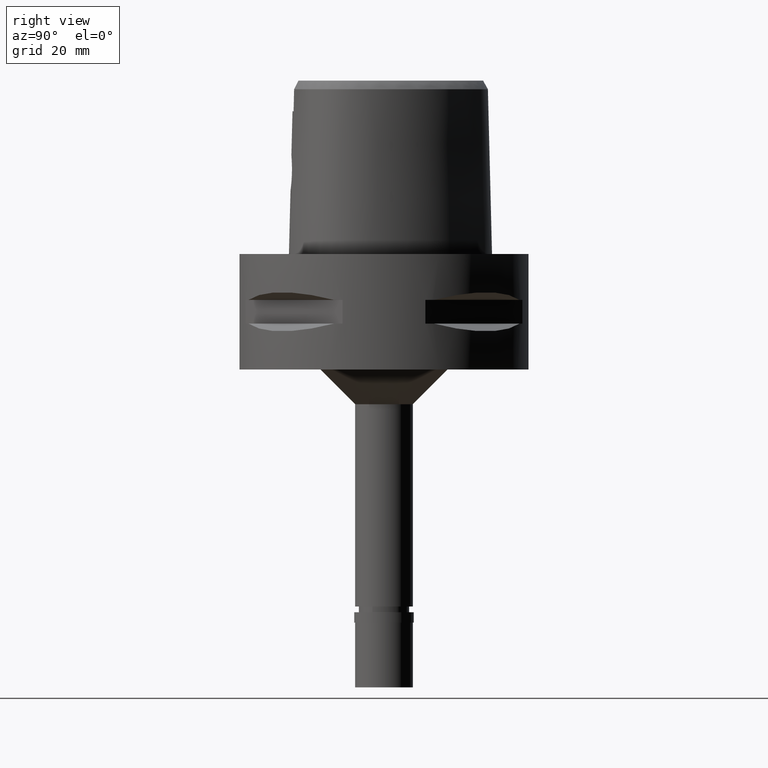
[diagram: clean part render]
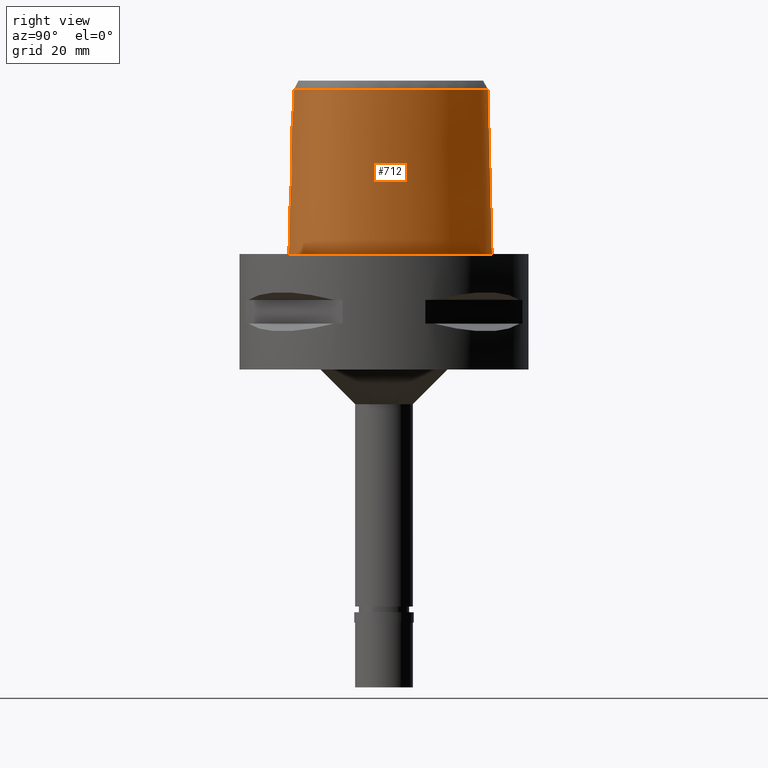
[diagram: same view with one face highlighted and labeled with its STEP entity id]
A machine part, right view. The second image highlights one B-rep face of the part: STEP entity #712.
In plain terms, the highlighted face is a freeform B-spline surface patch.
Its self-contained STEP definition (entity closure, byte-faithful):
#2 = CARTESIAN_POINT ( 'NONE',  ( 17.71143736562866167, -3.269218749935230761, -3.991948326802566283E-07 ) ) ;
#14 = CARTESIAN_POINT ( 'NONE',  ( 2.030224829794000080E-07, -15.83752876601000281, 24.70000006102999990 ) ) ;
#34 = CARTESIAN_POINT ( 'NONE',  ( 15.07117004567259677, -9.793013887526365480, 28.52071728562183495 ) ) ;
#35 = CARTESIAN_POINT ( 'NONE',  ( 0.6770584128777843436, -16.17132556088388995, 11.02443681068324643 ) ) ;
#53 = CARTESIAN_POINT ( 'NONE',  ( 16.29641058196000003, 3.623925460738000037, 9.316772533534999567 ) ) ;
#74 = CARTESIAN_POINT ( 'NONE',  ( 3.048883421515427461, -15.94046337244652278, 13.90502257973829003 ) ) ;
#102 = CARTESIAN_POINT ( 'NONE',  ( 1.979050802169605827, -16.09313883417849667, 11.67852903117091579 ) ) ;
#126 = EDGE_LOOP ( 'NONE', ( #3692, #1428, #3619, #3373, #3211, #3389, #194, #4748 ) ) ;
#129 = CARTESIAN_POINT ( 'NONE',  ( 2.164021906619612245, -15.96736812113673842, 16.14931344321803053 ) ) ;
#131 = CARTESIAN_POINT ( 'NONE',  ( 3.168920890822999770, -15.55911073834000113, 28.52071374672999582 ) ) ;
#150 = CARTESIAN_POINT ( 'NONE',  ( 2.806282367902103836, -15.99380854387472084, 12.80500890572250228 ) ) ;
#176 = CARTESIAN_POINT ( 'NONE',  ( 2.775961287969037183, -15.99857004330619148, 12.73620107529055190 ) ) ;
#193 = CARTESIAN_POINT ( 'NONE',  ( 13.75951381385537253, 7.944084035686613809, 28.52071728562183495 ) ) ;
#194 = ORIENTED_EDGE ( 'NONE', *, *, #1743, .T. ) ;
#209 = CARTESIAN_POINT ( 'NONE',  ( -0.7074880726816999976, -15.72098118148999824, 29.09114689043000013 ) ) ;
#232 = CARTESIAN_POINT ( 'NONE',  ( 6.797662629446558481E-08, -15.96503292052490686, 19.60000012629548394 ) ) ;
#233 = CARTESIAN_POINT ( 'NONE',  ( 17.72574105881000150, -3.269125760302999506, -0.5704146449103000283 ) ) ;
#253 = CARTESIAN_POINT ( 'NONE',  ( 5.009809425318999310, -15.92506883569000031, 9.316772533534999567 ) ) ;
#305 = CARTESIAN_POINT ( 'NONE',  ( 8.697311556956000445, -14.35163121040999989, 29.09114689043000013 ) ) ;
#327 = CARTESIAN_POINT ( 'NONE',  ( 4.735056264070999887, 17.74784407812000353, -0.5704146449103000283 ) ) ;
#348 = CARTESIAN_POINT ( 'NONE',  ( 14.39249255107000103, 8.309508948043999865, -0.5704146449103000283 ) ) ;
#363 = CARTESIAN_POINT ( 'NONE',  ( 17.56373943925516912, -5.455996095169528104, -3.991948326802566283E-07 ) ) ;
#386 = CARTESIAN_POINT ( 'NONE',  ( 2.030224829794000080E-07, -15.83752876601000281, 24.70000006102999990 ) ) ;
#421 = CARTESIAN_POINT ( 'NONE',  ( 16.06260407941999802, 3.539545337438999795, 19.20395971197999785 ) ) ;
#450 = CARTESIAN_POINT ( 'NONE',  ( 2.141618861872676138, -16.07744231414368841, 11.82835874812642984 ) ) ;
#470 = CARTESIAN_POINT ( 'NONE',  ( 2.459696765391575113, -15.95161770387217004, 15.80683248070965163 ) ) ;
#493 = CARTESIAN_POINT ( 'NONE',  ( 3.041209740384549942, -15.94490574327321930, 13.76368115324908281 ) ) ;
#514 = CARTESIAN_POINT ( 'NONE',  ( -2.866104152261000429E-11, 17.98202997909999823, 28.52071728569000086 ) ) ;
#522 = CARTESIAN_POINT ( 'NONE',  ( 2.883981873338816282, -15.93080840504316420, 14.99485968243840972 ) ) ;
#544 = CARTESIAN_POINT ( 'NONE',  ( 2.417729193041642688, -16.04731727844026423, 12.13798983179897029 ) ) ;
#603 = CARTESIAN_POINT ( 'NONE',  ( 16.21839714677999922, -9.363695958535000585, -0.5704146449103000283 ) ) ;
#613 = CARTESIAN_POINT ( 'NONE',  ( 3.191384142201736829, -15.58827398948734633, 27.24714251809000132 ) ) ;
#623 = FACE_OUTER_BOUND ( 'NONE', #126, .T. ) ;
#648 = CARTESIAN_POINT ( 'NONE',  ( 5.053620743629999801, -16.16974068352999794, -0.5704146449103000283 ) ) ;
#672 = CARTESIAN_POINT ( 'NONE',  ( 17.17866842803000083, -7.169980044230999994, -0.5704146449103000283 ) ) ;
#699 = CARTESIAN_POINT ( 'NONE',  ( -0.3630721097051999857, 18.20950143768000018, 19.20395971197999785 ) ) ;
#712 = ADVANCED_FACE ( 'NONE', ( #623 ), #1156, .T. ) ;
#719 = CARTESIAN_POINT ( 'NONE',  ( 17.02224580062999948, -0.3128848789309000011, 19.20395971197999785 ) ) ;
#730 = CARTESIAN_POINT ( 'NONE',  ( 14.78833381126891666, -11.28232910845732917, -3.991948326802566283E-07 ) ) ;
#743 = CARTESIAN_POINT ( 'NONE',  ( 7.668807732650000375, 15.44980316965999911, 19.20395971197999785 ) ) ;
#748 = CARTESIAN_POINT ( 'NONE',  ( 1.150837130458770563, -16.15205889506641057, 11.17544410961306589 ) ) ;
#756 = CARTESIAN_POINT ( 'NONE',  ( 2.040572359721528617, 18.55015625983262950, -3.991948326802566283E-07 ) ) ;
#778 = CARTESIAN_POINT ( 'NONE',  ( 9.149211217302000188E-11, 18.69499999997999851, 2.020235830475999669E-13 ) ) ;
#786 = CARTESIAN_POINT ( 'NONE',  ( -0.5293535133596000142, 17.95181577133000062, 29.09114689043000013 ) ) ;
#789 = CARTESIAN_POINT ( 'NONE',  ( 1.138812104616091059, -16.15267061231298129, 11.17057442770763842 ) ) ;
#815 = CARTESIAN_POINT ( 'NONE',  ( 1.262794661676007291, -16.00712763199256727, 16.77676499123157683 ) ) ;
#843 = CARTESIAN_POINT ( 'NONE',  ( 2.014841840659067795, -15.97504399877426984, 16.29192479722134124 ) ) ;
#869 = CARTESIAN_POINT ( 'NONE',  ( 2.824468722466921378, -15.93300016794370677, 15.15105085638172433 ) ) ;
#893 = CARTESIAN_POINT ( 'NONE',  ( 2.744096643855139739, -16.00346064512362076, 12.66698413766678755 ) ) ;
#915 = CARTESIAN_POINT ( 'NONE',  ( 2.088968113521979753, -15.97131126311716898, 16.22457167555463542 ) ) ;
#930 = CARTESIAN_POINT ( 'NONE',  ( 15.58740368722193459, -8.999391713747106891, 28.52071728562183495 ) ) ;
#954 = CARTESIAN_POINT ( 'NONE',  ( 7.523733068098557020, 15.26501041874094078, 28.52071728562183495 ) ) ;
#967 = CARTESIAN_POINT ( 'NONE',  ( 15.25987609263000166, -9.930205374483001890, 19.20395971197999785 ) ) ;
#976 = VECTOR ( 'NONE', #3222, 1000.000000000000114 ) ;
#995 = CARTESIAN_POINT ( 'NONE',  ( 1.321318946859000087, -16.50155084486000234, -0.5704146449103000283 ) ) ;
#1017 = CARTESIAN_POINT ( 'NONE',  ( 2.030224829794000080E-07, -15.83752876601000281, 24.70000006102999990 ) ) ;
#1043 = CARTESIAN_POINT ( 'NONE',  ( 15.78948633933000067, -9.116064187676000685, 19.20395971197999785 ) ) ;
#1069 = CARTESIAN_POINT ( 'NONE',  ( 16.22974816764000039, -8.250337671668001249, 19.20395971197999785 ) ) ;
#1076 = CARTESIAN_POINT ( 'NONE',  ( 0.0000000000000000000, -16.02877864023999877, 17.05000000000000071 ) ) ;
#1094 = CARTESIAN_POINT ( 'NONE',  ( 1.890839666437999833, 17.83402860272000012, 29.09114689043000013 ) ) ;
#1115 = CARTESIAN_POINT ( 'NONE',  ( 4.416345286767000111, 17.06979576572999946, 29.09114689043000013 ) ) ;
#1119 = CARTESIAN_POINT ( 'NONE',  ( 1.084489111473336598, -15.83754148654007565, 24.70000016056459557 ) ) ;
#1144 = CARTESIAN_POINT ( 'NONE',  ( 1.158353828547446396, -16.15167258786867777, 11.17852165137637144 ) ) ;
#1152 = CARTESIAN_POINT ( 'NONE',  ( 17.49754713295707376, -0.2285937482477732041, -3.991948326802566283E-07 ) ) ;
#1156 = B_SPLINE_SURFACE_WITH_KNOTS ( 'NONE', 3, 3, ( 
 ( #1763, #3199, #1714, #3245 ),
 ( #1337, #4013, #4361, #209 ),
 ( #995, #3296, #1790, #2118 ),
 ( #648, #253, #2144, #2910 ),
 ( #3272, #1738, #4776, #305 ),
 ( #4753, #3220, #3969, #4434 ),
 ( #1812, #2459, #4404, #1393 ),
 ( #2860, #2833, #1418, #4333 ),
 ( #4798, #2887, #967, #2073 ),
 ( #603, #4385, #1043, #1444 ),
 ( #2934, #2559, #1069, #2534 ),
 ( #672, #4065, #2170, #3675 ),
 ( #1362, #3575, #2100, #3599 ),
 ( #233, #4727, #2190, #2982 ),
 ( #3003, #3722, #719, #4458 ),
 ( #4477, #53, #421, #1900 ),
 ( #348, #1881, #2671, #4111 ),
 ( #1495, #1470, #3791, #4156 ),
 ( #2961, #3322, #743, #2630 ),
 ( #327, #3047, #3698, #1115 ),
 ( #4505, #1857, #2212, #1094 ),
 ( #2604, #1564, #1922, #3394 ),
 ( #3350, #3371, #699, #2236 ),
 ( #3747, #2583, #3416, #786 ) ),
 .UNSPECIFIED., .F., .F., .F.,
 ( 4, 1, 1, 1, 1, 1, 1, 1, 1, 1, 1, 1, 1, 1, 1, 1, 1, 1, 1, 1, 1, 4 ),
 ( 4, 4 ),
 ( -0.01796851319152999865, 0.0000000000000000000, 0.08333333333362000217, 0.1666666666669000263, 0.2083333333334000115, 0.2500000000000000000, 0.2916666666666999919, 0.3124999999998999689, 0.3333333333332000326, 0.3541666666666000163, 0.3749999999998999689, 0.4166666666665000407, 0.4583333333330000259, 0.4999999999996999622, 0.5833333333328000192, 0.6666666666660999718, 0.7499999999993000044, 0.8333333333325000369, 0.9166666666657999896, 0.9583333333322999747, 1.000000000000000000, 1.011711214084999977 ),
 ( 2.878883808426999954E-09, 0.9999998531768000687 ),
 .UNSPECIFIED. ) ;
#1164 = CARTESIAN_POINT ( 'NONE',  ( 5.902447799198612621, -15.16907841529256551, 28.52071728562183495 ) ) ;
#1166 = CARTESIAN_POINT ( 'NONE',  ( 1.719191830040013080, -16.11523926597387302, 11.47872671524808474 ) ) ;
#1210 = CARTESIAN_POINT ( 'NONE',  ( 2.975249651912823978, -15.92914271478721844, 14.67846616982687458 ) ) ;
#1234 = CARTESIAN_POINT ( 'NONE',  ( 2.852909278454515363, -15.93189406616820136, 15.07915126970514308 ) ) ;
#1256 = CARTESIAN_POINT ( 'NONE',  ( 2.899217746531571382, -15.97873758491098428, 13.02871175161756412 ) ) ;
#1257 = B_SPLINE_CURVE_WITH_KNOTS ( 'NONE', 3,
 ( #4479, #3052, #1119, #14 ),
 .UNSPECIFIED., .F., .F.,
 ( 4, 4 ),
 ( 0.0000000000000000000, 1.000000000000000000 ),
 .UNSPECIFIED. ) ;
#1283 = CARTESIAN_POINT ( 'NONE',  ( 2.262444582314412145, -15.96216938760131754, 16.04565077979857435 ) ) ;
#1290 = CARTESIAN_POINT ( 'NONE',  ( -2.866104152261000429E-11, 17.98202997909999823, 28.52071728569000086 ) ) ;
#1309 = CARTESIAN_POINT ( 'NONE',  ( 1.616099766049515107, -15.99381337938741687, 16.58846643699799728 ) ) ;
#1337 = CARTESIAN_POINT ( 'NONE',  ( -0.7264497208022000496, -16.46229665863999969, -0.5704146449103000283 ) ) ;
#1352 = CARTESIAN_POINT ( 'NONE',  ( 3.235096591086000117, -15.64751801257999908, 24.70000006080999810 ) ) ;
#1359 = CARTESIAN_POINT ( 'NONE',  ( 0.0000000000000000000, -16.02877864023999877, 17.05000000000000071 ) ) ;
#1362 = CARTESIAN_POINT ( 'NONE',  ( 17.57791639586999821, -5.458025465718999492, -0.5704146449103000283 ) ) ;
#1386 = EDGE_CURVE ( 'NONE', #1686, #3223, #1257, .T. ) ;
#1392 = CARTESIAN_POINT ( 'NONE',  ( 0.0000000000000000000, -16.02877864023999877, 17.05000000000000071 ) ) ;
#1393 = CARTESIAN_POINT ( 'NONE',  ( 13.05575610329999847, -11.90823718704999834, 29.09114689043000013 ) ) ;
#1418 = CARTESIAN_POINT ( 'NONE',  ( 14.43869630696999806, -10.95090978345000110, 19.20395971197999785 ) ) ;
#1428 = ORIENTED_EDGE ( 'NONE', *, *, #4289, .T. ) ;
#1444 = CARTESIAN_POINT ( 'NONE',  ( 15.57503093560000096, -8.992248302246999003, 29.09114689043000013 ) ) ;
#1470 = CARTESIAN_POINT ( 'NONE',  ( 11.28662495138999944, 12.30111482187000149, 9.316772533534999567 ) ) ;
#1485 = CARTESIAN_POINT ( 'NONE',  ( 5.051093169342475875, -16.15562500987939032, -3.991948326802566283E-07 ) ) ;
#1495 = CARTESIAN_POINT ( 'NONE',  ( 11.47659488403999895, 12.46143684764999904, -0.5704146449103000283 ) ) ;
#1498 = CARTESIAN_POINT ( 'NONE',  ( 1.078575942915589891, -16.15565394761469165, 11.14687127074790318 ) ) ;
#1504 = CARTESIAN_POINT ( 'NONE',  ( 7.967839670440586275, 15.83070313291819886, -3.991948326802566283E-07 ) ) ;
#1529 = CARTESIAN_POINT ( 'NONE',  ( 11.68694517078776407, -13.70394532120008790, -3.991948326802566283E-07 ) ) ;
#1564 = CARTESIAN_POINT ( 'NONE',  ( 0.4768940271348000026, 18.48195220700999997, 9.316772533534999567 ) ) ;
#1568 = CARTESIAN_POINT ( 'NONE',  ( 1.466707760604498256, -16.13401281180512115, 11.31839107166932834 ) ) ;
#1583 = EDGE_CURVE ( 'NONE', #3694, #2461, #3023, .T. ) ;
#1585 = CARTESIAN_POINT ( 'NONE',  ( 3.032153927794988046, -15.93034332000361708, 14.38503233290864713 ) ) ;
#1612 = CARTESIAN_POINT ( 'NONE',  ( 2.638828814099706932, -16.01860464026678343, 12.46732066279884243 ) ) ;
#1637 = CARTESIAN_POINT ( 'NONE',  ( 1.935527014342864449, -16.09705987418944773, 11.64218429701640112 ) ) ;
#1660 = CARTESIAN_POINT ( 'NONE',  ( 2.836520581861567969, -15.93251973351802597, 15.12113420123081475 ) ) ;
#1674 = CARTESIAN_POINT ( 'NONE',  ( 15.84228676732803187, 3.460033425849529554, 28.52071728562183495 ) ) ;
#1684 = CARTESIAN_POINT ( 'NONE',  ( 2.907704111751938214, -15.93016185020670861, 14.92213459652817953 ) ) ;
#1686 = VERTEX_POINT ( 'NONE', #1786 ) ;
#1714 = CARTESIAN_POINT ( 'NONE',  ( -1.070056062114999929, -15.95437370616999750, 19.20395971197999785 ) ) ;
#1738 = CARTESIAN_POINT ( 'NONE',  ( 8.866858745974999678, -14.81887821445000064, 9.316772533534999567 ) ) ;
#1743 = EDGE_CURVE ( 'NONE', #3694, #2116, #3268, .T. ) ;
#1745 = CARTESIAN_POINT ( 'NONE',  ( -3.091530735616000307E-12, -16.18126839358999902, 10.94999999999999929 ) ) ;
#1763 = CARTESIAN_POINT ( 'NONE',  ( -1.089046662647999986, -16.44835921782999932, -0.5704146449103000283 ) ) ;
#1786 = CARTESIAN_POINT ( 'NONE',  ( 3.235096591086000117, -15.64751801257999908, 24.70000006080999810 ) ) ;
#1790 = CARTESIAN_POINT ( 'NONE',  ( 1.298308558733999973, -16.00668753957000234, 19.20395971197999785 ) ) ;
#1812 = CARTESIAN_POINT ( 'NONE',  ( 13.51574691188999999, -12.49390941177000158, -0.5704146449103000283 ) ) ;
#1846 = CARTESIAN_POINT ( 'NONE',  ( 13.50690094099243588, -12.48264649225408007, -3.991948326802566283E-07 ) ) ;
#1857 = CARTESIAN_POINT ( 'NONE',  ( 1.992618750672000116, 18.32080817996000377, 9.316772533534999567 ) ) ;
#1872 = CARTESIAN_POINT ( 'NONE',  ( 15.64884225064778001, -10.21298828712823514, -3.991948326802566283E-07 ) ) ;
#1881 = CARTESIAN_POINT ( 'NONE',  ( 14.17736241210999992, 8.185312181938000364, 9.316772533534999567 ) ) ;
#1900 = CARTESIAN_POINT ( 'NONE',  ( 15.82879757688000133, 3.455165214141000085, 29.09114689043000013 ) ) ;
#1903 = B_SPLINE_CURVE_WITH_KNOTS ( 'NONE', 3,
 ( #1017, #2933, #232, #1392 ),
 .UNSPECIFIED., .F., .F.,
 ( 4, 4 ),
 ( 0.0000000000000000000, 1.000000000000000000 ),
 .UNSPECIFIED. ) ;
#1922 = CARTESIAN_POINT ( 'NONE',  ( 0.4640361029637999901, 18.23425885921000145, 19.20395971197999785 ) ) ;
#1948 = CARTESIAN_POINT ( 'NONE',  ( 3.014162081768897661, -15.95399573205361854, 13.52323755265707383 ) ) ;
#1969 = CARTESIAN_POINT ( 'NONE',  ( 1.531589067142498539, -15.99732691922906724, 16.63945844436470267 ) ) ;
#1991 = CARTESIAN_POINT ( 'NONE',  ( 2.114644142904472446, -16.08015782783963843, 11.80200641015005658 ) ) ;
#2016 = CARTESIAN_POINT ( 'NONE',  ( 2.821425036078518023, -15.93312409536605578, 15.15848376097717853 ) ) ;
#2033 = CARTESIAN_POINT ( 'NONE',  ( -2.866104152261000429E-11, 17.98202997909999823, 28.52071728569000086 ) ) ;
#2040 = CARTESIAN_POINT ( 'NONE',  ( 2.796681338619851243, -15.99533385695051813, 12.78273984513788442 ) ) ;
#2073 = CARTESIAN_POINT ( 'NONE',  ( 15.05961629266999857, -9.784614174957999566, 29.09114689043000013 ) ) ;
#2100 = CARTESIAN_POINT ( 'NONE',  ( 17.08644822262000318, -5.387673904102999956, 19.20395971197999785 ) ) ;
#2116 = VERTEX_POINT ( 'NONE', #2402 ) ;
#2118 = CARTESIAN_POINT ( 'NONE',  ( 1.286803364670999983, -15.75925588693000101, 29.09114689043000013 ) ) ;
#2144 = CARTESIAN_POINT ( 'NONE',  ( 4.965998107007999707, -15.68039698784999914, 19.20395971197999785 ) ) ;
#2170 = CARTESIAN_POINT ( 'NONE',  ( 16.70311420708999961, -7.028822885881999660, 19.20395971197999785 ) ) ;
#2190 = CARTESIAN_POINT ( 'NONE',  ( 17.22987934816999811, -3.272349403143000046, 19.20395971197999785 ) ) ;
#2212 = CARTESIAN_POINT ( 'NONE',  ( 1.941729208554999975, 18.07741839134000017, 19.20395971197999785 ) ) ;
#2224 = CARTESIAN_POINT ( 'NONE',  ( 16.20602472830037399, -9.356552739374642158, -3.991948326802566283E-07 ) ) ;
#2225 = EDGE_CURVE ( 'NONE', #1686, #2948, #4484, .T. ) ;
#2236 = CARTESIAN_POINT ( 'NONE',  ( -0.3531410538932000520, 17.96248741091000056, 29.09114689043000013 ) ) ;
#2245 = CARTESIAN_POINT ( 'NONE',  ( 0.7748558813816244228, -16.16821842566323042, 11.04831638025946816 ) ) ;
#2298 = CARTESIAN_POINT ( 'NONE',  ( 1.683697723107680400, -16.45500000998132961, -3.991948326802566283E-07 ) ) ;
#2312 = CARTESIAN_POINT ( 'NONE',  ( 2.147962331140137238, -16.07679769526338731, 11.83463701146487246 ) ) ;
#2334 = CARTESIAN_POINT ( 'NONE',  ( 1.859549321997236992, -15.98255794229956628, 16.41807320997656561 ) ) ;
#2357 = CARTESIAN_POINT ( 'NONE',  ( 1.217867162102865830, -16.00861105600193213, 16.79681041045230572 ) ) ;
#2383 = CARTESIAN_POINT ( 'NONE',  ( 3.044506884776515321, -15.94333381584075582, 13.81108558313461110 ) ) ;
#2400 = CARTESIAN_POINT ( 'NONE',  ( 0.6295828025445634468, 17.98202997638037459, 28.52071728562183495 ) ) ;
#2402 = CARTESIAN_POINT ( 'NONE',  ( -2.483613896260000024E-11, -16.45500000000000185, 2.032078209405999923E-13 ) ) ;
#2407 = CARTESIAN_POINT ( 'NONE',  ( 2.320231428406520635, -15.95909571851455588, 15.98050410814317424 ) ) ;
#2423 = CARTESIAN_POINT ( 'NONE',  ( 13.06460231238601288, -11.91950040983419790, 28.52071728562183495 ) ) ;
#2448 = CARTESIAN_POINT ( 'NONE',  ( 10.91764517733244944, 11.98972036053727308, 28.52071728562183495 ) ) ;
#2459 = CARTESIAN_POINT ( 'NONE',  ( 13.36241664235999949, -12.29868533686999932, 9.316772533534999567 ) ) ;
#2461 = VERTEX_POINT ( 'NONE', #1076 ) ;
#2481 = DIRECTION ( 'NONE',  ( -1.985188779248950183E-12, -0.02499051295371941192, -0.9996876883618752707 ) ) ;
#2534 = CARTESIAN_POINT ( 'NONE',  ( 16.00353259144999996, -8.149703199408000032, 29.09114689043000013 ) ) ;
#2559 = CARTESIAN_POINT ( 'NONE',  ( 16.45596374382999727, -8.350972143927998914, 9.316772533534999567 ) ) ;
#2583 = CARTESIAN_POINT ( 'NONE',  ( -0.5593289299425998617, 18.44521841509999760, 9.316772533534999567 ) ) ;
#2584 = CARTESIAN_POINT ( 'NONE',  ( 9.149211217302000188E-11, 18.69499999997999851, 2.020235830475999669E-13 ) ) ;
#2604 = CARTESIAN_POINT ( 'NONE',  ( 0.4897519513056999840, 18.72964555480999849, -0.5704146449103000283 ) ) ;
#2630 = CARTESIAN_POINT ( 'NONE',  ( 7.514850698570999299, 15.25369626196000006, 29.09114689043000013 ) ) ;
#2651 = CARTESIAN_POINT ( 'NONE',  ( 3.738627708319689713, -15.49270856215304804, 28.52071728562183850 ) ) ;
#2671 = CARTESIAN_POINT ( 'NONE',  ( 13.96223227313999971, 8.061115415831000774, 19.20395971197999785 ) ) ;
#2699 = CARTESIAN_POINT ( 'NONE',  ( 1.805376232608846498, -16.10834772479885402, 11.53923680361573822 ) ) ;
#2723 = CARTESIAN_POINT ( 'NONE',  ( 1.898958778535287495, -15.98067541706731376, 16.38724889510307747 ) ) ;
#2746 = CARTESIAN_POINT ( 'NONE',  ( 2.130834279647308982, -16.07853149005595839, 11.81777582520773784 ) ) ;
#2775 = CARTESIAN_POINT ( 'NONE',  ( 2.196663950529425868, -15.96564993910013008, 16.11602529263611316 ) ) ;
#2833 = CARTESIAN_POINT ( 'NONE',  ( 14.61870769157999916, -11.12154151158999937, 9.316772533534999567 ) ) ;
#2860 = CARTESIAN_POINT ( 'NONE',  ( 14.79871907619000027, -11.29217323973000120, -0.5704146449103000283 ) ) ;
#2887 = CARTESIAN_POINT ( 'NONE',  ( 15.46013589260000032, -10.07579657401000084, 9.316772533534999567 ) ) ;
#2910 = CARTESIAN_POINT ( 'NONE',  ( 4.922186788696999216, -15.43572514001000151, 29.09114689043000013 ) ) ;
#2933 = CARTESIAN_POINT ( 'NONE',  ( 6.782141396552030816E-08, -15.90128720080548952, 22.15000025259084637 ) ) ;
#2934 = CARTESIAN_POINT ( 'NONE',  ( 16.68217932003000215, -8.451606616188000132, -0.5704146449103000283 ) ) ;
#2948 = VERTEX_POINT ( 'NONE', #131 ) ;
#2961 = CARTESIAN_POINT ( 'NONE',  ( 7.976721800805998797, 15.84201698506000255, -0.5704146449103000283 ) ) ;
#2973 = CARTESIAN_POINT ( 'NONE',  ( 11.46563508790329955, 12.45218750648184169, -3.991948326802566283E-07 ) ) ;
#2982 = CARTESIAN_POINT ( 'NONE',  ( 16.98194849285000174, -3.273961224563000094, 29.09114689043000013 ) ) ;
#2991 = CARTESIAN_POINT ( 'NONE',  ( 4.728927211104506867, 17.73480469662251124, -3.991948326802566283E-07 ) ) ;
#3003 = CARTESIAN_POINT ( 'NONE',  ( 17.51166498414000117, -0.2260900531009999992, -0.5704146449103000283 ) ) ;
#3008 = CARTESIAN_POINT ( 'NONE',  ( 0.1898211197376006576, -16.18126839358999547, 10.94999999999999574 ) ) ;
#3023 = B_SPLINE_CURVE_WITH_KNOTS ( 'NONE', 3,
 ( #3354, #3008, #3398, #35, #2245, #3795, #4849, #1498, #4536, #789, #748, #1144, #3751, #1568, #1166, #2699, #1637, #102, #3442, #3914, #1991, #2746, #450, #2312, #3841, #3120, #544, #4253, #4581, #1612, #3541, #893, #176, #2040, #150, #1256, #3864, #1948, #3821, #493, #2383, #74, #3889, #3099, #1585, #1210, #4608, #1684, #522, #1234, #1660, #4627, #869, #2016, #3141, #3072, #3517, #470, #4649, #2407, #1283, #3492, #2775, #4278, #4208, #129, #915, #843, #2723, #2334, #3169, #4674, #1309, #1969, #4183, #4230, #815, #2357, #3466, #4795, #1359 ),
 .UNSPECIFIED., .F., .F.,
 ( 4, 2, 2, 1, 1, 1, 2, 2, 2, 2, 2, 1, 1, 2, 2, 2, 2, 2, 1, 2, 2, 2, 2, 2, 2, 2, 2, 1, 1, 1, 2, 2, 2, 2, 2, 1, 1, 2, 2, 2, 2, 2, 2, 2, 2, 4 ),
 ( 0.0000000000000000000, 0.06250000000001069977, 0.09375000000001598721, 0.1093750000000186101, 0.1171875000000200118, 0.1210937500000205530, 0.1230468750000209277, 0.1250000000000212885, 0.1875000000000273670, 0.2187500000000302536, 0.2343750000000317524, 0.2421875000000324740, 0.2460937500000328626, 0.2480468750000328904, 0.2500000000000329181, 0.2812500000000295319, 0.3125000000000262013, 0.3437500000000228151, 0.3593750000000211497, 0.3671875000000203726, 0.3750000000000195954, 0.4375000000000126010, 0.4687500000000091593, 0.4843750000000076605, 0.5000000000000061062, 0.5624999999999996669, 0.5937499999999962252, 0.6093749999999946709, 0.6171874999999941158, 0.6210937499999936717, 0.6230468749999934497, 0.6249999999999932276, 0.6874999999999920064, 0.7187499999999911182, 0.7343749999999906741, 0.7421874999999908962, 0.7460937499999910072, 0.7480468749999907851, 0.7499999999999905631, 0.7812499999999924505, 0.7968749999999930056, 0.8124999999999935607, 0.8437499999999946709, 0.8593749999999950040, 0.8749999999999953371, 1.000000000000000000 ),
 .UNSPECIFIED. ) ;
#3025 = B_SPLINE_CURVE_WITH_KNOTS ( 'NONE', 3,
 ( #2033, #2400, #4321, #4534, #954, #2448, #193, #1674, #3159, #3907, #4663, #4295, #3396, #930, #34, #3050, #2423, #4554, #4158, #1164, #2651, #3881 ),
 .UNSPECIFIED., .F., .F.,
 ( 4, 1, 1, 1, 1, 1, 1, 1, 1, 1, 1, 1, 1, 1, 1, 1, 1, 1, 1, 4 ),
 ( 0.0000000000000000000, 0.04404152929334458066, 0.08808305858542071765, 0.1761661171698900852, 0.2642491757542538289, 0.3523322343386175448, 0.4404152929230868985, 0.5284983515073449212, 0.5725398807996325834, 0.6165814100917086371, 0.6606229393838904951, 0.6826437040299814241, 0.7046644686761780463, 0.7266852333222689753, 0.7487059979682542110, 0.7927475272605417622, 0.8367890565527236202, 0.8808305858447997849, 0.9689136444292479888, 1.000000000000000000 ),
 .UNSPECIFIED. ) ;
#3047 = CARTESIAN_POINT ( 'NONE',  ( 4.628819271637000021, 17.52182797398999980, 9.316772533534999567 ) ) ;
#3050 = CARTESIAN_POINT ( 'NONE',  ( 14.26907046692631909, -10.79012245165722916, 28.52071728562183495 ) ) ;
#3052 = CARTESIAN_POINT ( 'NONE',  ( 2.169052010909136907, -15.77399788591404928, 24.70000016056459557 ) ) ;
#3072 = CARTESIAN_POINT ( 'NONE',  ( 2.681016418395045342, -15.93974068711152547, 15.46783011061541835 ) ) ;
#3077 = EDGE_CURVE ( 'NONE', #3223, #2461, #1903, .T. ) ;
#3099 = CARTESIAN_POINT ( 'NONE',  ( 3.050149896193000476, -15.93316336324771676, 14.18941404704232490 ) ) ;
#3120 = CARTESIAN_POINT ( 'NONE',  ( 2.290593162244018988, -16.06186194956424984, 11.98364703425943567 ) ) ;
#3141 = CARTESIAN_POINT ( 'NONE',  ( 2.759961640973259911, -15.93564958624568639, 15.30749493561489238 ) ) ;
#3159 = CARTESIAN_POINT ( 'NONE',  ( 16.79165444020254583, -0.3537785292841114093, 28.52071728562183495 ) ) ;
#3169 = CARTESIAN_POINT ( 'NONE',  ( 1.779262221764184249, -15.98633376436653108, 16.47774649146144554 ) ) ;
#3199 = CARTESIAN_POINT ( 'NONE',  ( -1.079551362381000024, -16.20136646200000285, 9.316772533534999567 ) ) ;
#3211 = ORIENTED_EDGE ( 'NONE', *, *, #3077, .T. ) ;
#3220 = CARTESIAN_POINT ( 'NONE',  ( 11.57144730290000112, -13.50085886077000019, 9.316772533534999567 ) ) ;
#3222 = DIRECTION ( 'NONE',  ( 4.211522005722894057E-12, 0.02499051285773934081, -0.9996876883642746847 ) ) ;
#3223 = VERTEX_POINT ( 'NONE', #386 ) ;
#3245 = CARTESIAN_POINT ( 'NONE',  ( -1.060560761848000189, -15.70738095033999748, 29.09114689043000013 ) ) ;
#3268 = LINE ( 'NONE', #4328, #4737 ) ;
#3272 = CARTESIAN_POINT ( 'NONE',  ( 8.951632340484000139, -15.05250171645999835, -0.5704146449103000283 ) ) ;
#3296 = CARTESIAN_POINT ( 'NONE',  ( 1.309813752795999875, -16.25411919220999835, 9.316772533534999567 ) ) ;
#3322 = CARTESIAN_POINT ( 'NONE',  ( 7.822764766727999586, 15.64591007736000350, 9.316772533534999567 ) ) ;
#3335 = CARTESIAN_POINT ( 'NONE',  ( 14.38008120558509262, 8.302343755013861681, -3.991948326802566283E-07 ) ) ;
#3350 = CARTESIAN_POINT ( 'NONE',  ( -0.3829342213293999708, 18.70352949121999941, -0.5704146449103000283 ) ) ;
#3354 = CARTESIAN_POINT ( 'NONE',  ( -3.091530735616000307E-12, -16.18126839358999902, 10.94999999999999929 ) ) ;
#3371 = CARTESIAN_POINT ( 'NONE',  ( -0.3730031655173000060, 18.45651546444999980, 9.316772533534999567 ) ) ;
#3373 = ORIENTED_EDGE ( 'NONE', *, *, #1386, .T. ) ;
#3379 = EDGE_CURVE ( 'NONE', #2116, #4054, #4834, .T. ) ;
#3389 = ORIENTED_EDGE ( 'NONE', *, *, #1583, .F. ) ;
#3394 = CARTESIAN_POINT ( 'NONE',  ( 0.4511781787928999532, 17.98656551140999937, 29.09114689043000013 ) ) ;
#3396 = CARTESIAN_POINT ( 'NONE',  ( 16.01658383235385941, -8.155509186611972439, 28.52071728562183495 ) ) ;
#3398 = CARTESIAN_POINT ( 'NONE',  ( 0.3842297570385789229, -16.17878268541347708, 10.96777226348877221 ) ) ;
#3416 = CARTESIAN_POINT ( 'NONE',  ( -0.5443412216511001045, 18.19851709322000133, 19.20395971197999785 ) ) ;
#3442 = CARTESIAN_POINT ( 'NONE',  ( 2.044225401081650073, -16.08701963945036084, 11.73626748626440630 ) ) ;
#3466 = CARTESIAN_POINT ( 'NONE',  ( 0.7741482008191986619, -16.02257322970521614, 16.98085959781949938 ) ) ;
#3492 = CARTESIAN_POINT ( 'NONE',  ( 2.232748692361829157, -15.96374470980125082, 16.07819212816551158 ) ) ;
#3517 = CARTESIAN_POINT ( 'NONE',  ( 2.520317714005605225, -15.94834054842958437, 15.72060082174885132 ) ) ;
#3541 = CARTESIAN_POINT ( 'NONE',  ( 2.709953204679841576, -16.00846021379279449, 12.59958595635182732 ) ) ;
#3575 = CARTESIAN_POINT ( 'NONE',  ( 17.33218230924000025, -5.422849684911001056, 9.316772533534999567 ) ) ;
#3599 = CARTESIAN_POINT ( 'NONE',  ( 16.84071413599999900, -5.352498123294999743, 29.09114689043000013 ) ) ;
#3611 = CARTESIAN_POINT ( 'NONE',  ( 3.168920890822999770, -15.55911073834000113, 28.52071374672999582 ) ) ;
#3619 = ORIENTED_EDGE ( 'NONE', *, *, #2225, .F. ) ;
#3651 = LINE ( 'NONE', #1290, #976 ) ;
#3675 = CARTESIAN_POINT ( 'NONE',  ( 16.46533709662000078, -6.958244306707999982, 29.09114689043000013 ) ) ;
#3692 = ORIENTED_EDGE ( 'NONE', *, *, #3835, .F. ) ;
#3694 = VERTEX_POINT ( 'NONE', #1745 ) ;
#3698 = CARTESIAN_POINT ( 'NONE',  ( 4.522582279202000066, 17.29581186985999963, 19.20395971197999785 ) ) ;
#3706 = CARTESIAN_POINT ( 'NONE',  ( 8.946741559608135219, -15.03902344693041648, -3.991948326802566283E-07 ) ) ;
#3722 = CARTESIAN_POINT ( 'NONE',  ( 17.26695539238000165, -0.2694874660159999880, 9.316772533534999567 ) ) ;
#3747 = CARTESIAN_POINT ( 'NONE',  ( -0.5743166382340999521, 18.69191973698999831, -0.5704146449103000283 ) ) ;
#3751 = CARTESIAN_POINT ( 'NONE',  ( 1.306758668679836255, -16.14399373876757338, 11.23972581489134370 ) ) ;
#3791 = CARTESIAN_POINT ( 'NONE',  ( 11.09665501873999993, 12.14079279609000039, 19.20395971197999785 ) ) ;
#3795 = CARTESIAN_POINT ( 'NONE',  ( 0.9209982704669138487, -16.16262558226605250, 11.09193420934360397 ) ) ;
#3821 = CARTESIAN_POINT ( 'NONE',  ( 3.027798455715707604, -15.95003164277662755, 13.62032956274716966 ) ) ;
#3835 = EDGE_CURVE ( 'NONE', #4296, #4054, #3651, .T. ) ;
#3841 = CARTESIAN_POINT ( 'NONE',  ( 2.223227574825756836, -16.06911398227905252, 11.90960399256272062 ) ) ;
#3864 = CARTESIAN_POINT ( 'NONE',  ( 2.957688824804171279, -15.96752846870873022, 13.22897551199208444 ) ) ;
#3881 = CARTESIAN_POINT ( 'NONE',  ( 3.168920890822999770, -15.55911073834000113, 28.52071374672999582 ) ) ;
#3889 = CARTESIAN_POINT ( 'NONE',  ( 3.049961347112722265, -15.93921296701098989, 13.94964838113523520 ) ) ;
#3907 = CARTESIAN_POINT ( 'NONE',  ( 16.99625257117554966, -3.273868232426911717, 28.52071728562183495 ) ) ;
#3914 = CARTESIAN_POINT ( 'NONE',  ( 2.076784380864719726, -16.08390063340834786, 11.76594178764675114 ) ) ;
#3969 = CARTESIAN_POINT ( 'NONE',  ( 11.44887814222999900, -13.28533854464999919, 19.20395971197999785 ) ) ;
#4013 = CARTESIAN_POINT ( 'NONE',  ( -0.7201291714287000323, -16.21519149958999861, 9.316772533534999567 ) ) ;
#4054 = VERTEX_POINT ( 'NONE', #2584 ) ;
#4065 = CARTESIAN_POINT ( 'NONE',  ( 16.94089131756000199, -7.099401465056999427, 9.316772533534999567 ) ) ;
#4073 = CARTESIAN_POINT ( 'NONE',  ( -2.483613896260000024E-11, -16.45500000000000185, 2.032078209405999923E-13 ) ) ;
#4111 = CARTESIAN_POINT ( 'NONE',  ( 13.74710213417999860, 7.936918649725000385, 29.09114689043000013 ) ) ;
#4121 = CARTESIAN_POINT ( 'NONE',  ( 16.51672825724549654, 3.703437503406420195, -3.991948326802566283E-07 ) ) ;
#4148 = CARTESIAN_POINT ( 'NONE',  ( 17.16495052741082006, -7.165908205974414358, -3.991948326802566283E-07 ) ) ;
#4156 = CARTESIAN_POINT ( 'NONE',  ( 10.90668508609000042, 11.98047077031999841, 29.09114689043000013 ) ) ;
#4158 = CARTESIAN_POINT ( 'NONE',  ( 8.702202469522049455, -14.36510984285883730, 28.52071728562183495 ) ) ;
#4183 = CARTESIAN_POINT ( 'NONE',  ( 1.399412083726095268, -16.00233608542867358, 16.71046994217811488 ) ) ;
#4208 = CARTESIAN_POINT ( 'NONE',  ( 2.170299400654048583, -15.96703807926082241, 16.14297866672071891 ) ) ;
#4230 = CARTESIAN_POINT ( 'NONE',  ( 1.354452607727719249, -16.00396228356807171, 16.73322745257438626 ) ) ;
#4253 = CARTESIAN_POINT ( 'NONE',  ( 2.478737183283747925, -16.03986208745244824, 12.22013516386344989 ) ) ;
#4278 = CARTESIAN_POINT ( 'NONE',  ( 2.180887052763814449, -15.96648089881372279, 16.13220278528723384 ) ) ;
#4289 = EDGE_CURVE ( 'NONE', #4296, #2948, #3025, .T. ) ;
#4295 = CARTESIAN_POINT ( 'NONE',  ( 16.47905536661022552, -6.962316254603748256, 28.52071728562183495 ) ) ;
#4296 = VERTEX_POINT ( 'NONE', #514 ) ;
#4321 = CARTESIAN_POINT ( 'NONE',  ( 1.893775678555645658, 17.84807068955836229, 28.52071728562183495 ) ) ;
#4328 = CARTESIAN_POINT ( 'NONE',  ( -3.091530735616000307E-12, -16.18126839358999902, 10.94999999999999929 ) ) ;
#4333 = CARTESIAN_POINT ( 'NONE',  ( 14.25868492236999963, -10.78027805532000016, 29.09114689043000013 ) ) ;
#4361 = CARTESIAN_POINT ( 'NONE',  ( -0.7138086220552000150, -15.96808634053999754, 19.20395971197999785 ) ) ;
#4385 = CARTESIAN_POINT ( 'NONE',  ( 16.00394174304999950, -9.239880073105000591, 9.316772533534999567 ) ) ;
#4404 = CARTESIAN_POINT ( 'NONE',  ( 13.20908637282999898, -12.10346126195999972, 19.20395971197999785 ) ) ;
#4434 = CARTESIAN_POINT ( 'NONE',  ( 11.32630898156000043, -13.06981822852999997, 29.09114689043000013 ) ) ;
#4458 = CARTESIAN_POINT ( 'NONE',  ( 16.77753620888000086, -0.3562822918458999899, 29.09114689043000013 ) ) ;
#4468 = CARTESIAN_POINT ( 'NONE',  ( 16.66912843053653859, -8.445800785313036130, -3.991948326802566283E-07 ) ) ;
#4477 = CARTESIAN_POINT ( 'NONE',  ( 16.53021708448999760, 3.708305584035999747, -0.5704146449103000283 ) ) ;
#4479 = CARTESIAN_POINT ( 'NONE',  ( 3.235096591086000117, -15.64751801257999908, 24.70000006080999810 ) ) ;
#4484 = B_SPLINE_CURVE_WITH_KNOTS ( 'NONE', 3,
 ( #1352, #4716, #613, #3611 ),
 .UNSPECIFIED., .F., .F.,
 ( 4, 4 ),
 ( 0.0000000000000000000, 1.000000000000000000 ),
 .UNSPECIFIED. ) ;
#4490 = CARTESIAN_POINT ( 'NONE',  ( 0.6801907865883222160, 18.69500000997474487, -3.991948326802566283E-07 ) ) ;
#4505 = CARTESIAN_POINT ( 'NONE',  ( 2.043508292788999814, 18.56419796858000026, -0.5704146449103000283 ) ) ;
#4534 = CARTESIAN_POINT ( 'NONE',  ( 4.422474504765703252, 17.08283549832858839, 28.52071728562183495 ) ) ;
#4536 = CARTESIAN_POINT ( 'NONE',  ( 1.120763508487453430, -16.15358090583465511, 11.16333240776607560 ) ) ;
#4554 = CARTESIAN_POINT ( 'NONE',  ( 11.33338046474533556, -13.08225241901649483, 28.52071728562183495 ) ) ;
#4581 = CARTESIAN_POINT ( 'NONE',  ( 2.587629427716052533, -16.02556131009697893, 12.38252332210732654 ) ) ;
#4608 = CARTESIAN_POINT ( 'NONE',  ( 2.951306861662620129, -15.92924742299003960, 14.77626636585412001 ) ) ;
#4627 = CARTESIAN_POINT ( 'NONE',  ( 2.829313881745448622, -15.93280562740808826, 15.13908937170598179 ) ) ;
#4649 = CARTESIAN_POINT ( 'NONE',  ( 2.356615372638851014, -15.95714923954086295, 15.93698914121854315 ) ) ;
#4663 = CARTESIAN_POINT ( 'NONE',  ( 16.85489147434594059, -5.354527548487725497, 28.52071728562183495 ) ) ;
#4674 = CARTESIAN_POINT ( 'NONE',  ( 1.737183591012293027, -15.98828192606207388, 16.50739953107601821 ) ) ;
#4716 = CARTESIAN_POINT ( 'NONE',  ( 3.213444788215948034, -15.61774735051721308, 25.97357128944999971 ) ) ;
#4727 = CARTESIAN_POINT ( 'NONE',  ( 17.47781020348999803, -3.270737581722999998, 9.316772533534999567 ) ) ;
#4737 = VECTOR ( 'NONE', #2481, 1000.000000000000114 ) ;
#4748 = ORIENTED_EDGE ( 'NONE', *, *, #3379, .T. ) ;
#4753 = CARTESIAN_POINT ( 'NONE',  ( 11.69401646356999969, -13.71637917688999941, -0.5704146449103000283 ) ) ;
#4776 = CARTESIAN_POINT ( 'NONE',  ( 8.782085151465000905, -14.58525471243000027, 19.20395971197999785 ) ) ;
#4795 = CARTESIAN_POINT ( 'NONE',  ( 0.3724840145390406754, -16.02877864023999877, 17.04999999999999361 ) ) ;
#4798 = CARTESIAN_POINT ( 'NONE',  ( 15.66039569255999986, -10.22138777352999917, -0.5704146449103000283 ) ) ;
#4834 = B_SPLINE_CURVE_WITH_KNOTS ( 'NONE', 3,
 ( #4073, #2298, #1485, #3706, #1529, #1846, #730, #1872, #2224, #4468, #4148, #363, #2, #1152, #4121, #3335, #2973, #1504, #2991, #756, #4490, #778 ),
 .UNSPECIFIED., .F., .F.,
 ( 4, 1, 1, 1, 1, 1, 1, 1, 1, 1, 1, 1, 1, 1, 1, 1, 1, 1, 1, 4 ),
 ( 0.0000000000000000000, 0.08333333333362000217, 0.1666666666669000263, 0.2083333333334000115, 0.2500000000000000000, 0.2916666666666999919, 0.3124999999998999689, 0.3333333333332000326, 0.3541666666666000163, 0.3749999999998999689, 0.4166666666665000407, 0.4583333333330000259, 0.4999999999996999622, 0.5833333333328000192, 0.6666666666660999718, 0.7499999999993000044, 0.8333333333325000369, 0.9166666666657999896, 0.9583333333322999747, 1.000000000000000000 ),
 .UNSPECIFIED. ) ;
#4849 = CARTESIAN_POINT ( 'NONE',  ( 0.9939297242891761419, -16.15959612542590662, 11.11569146158397814 ) ) ;